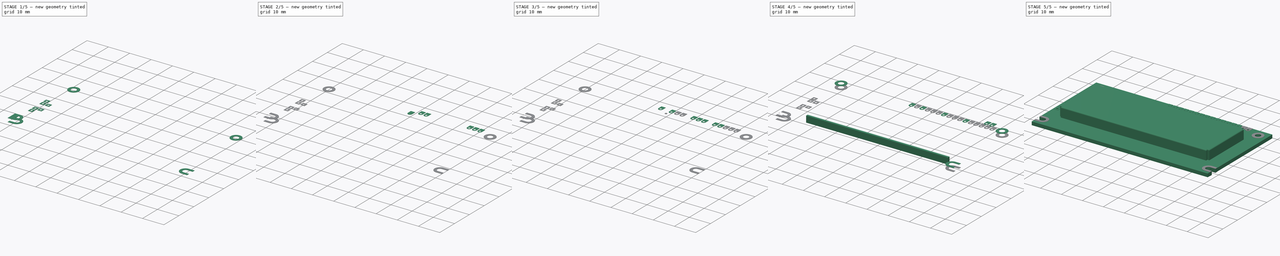
[diagram: build sequence overview — one tinted view per stage of 5, left to right]
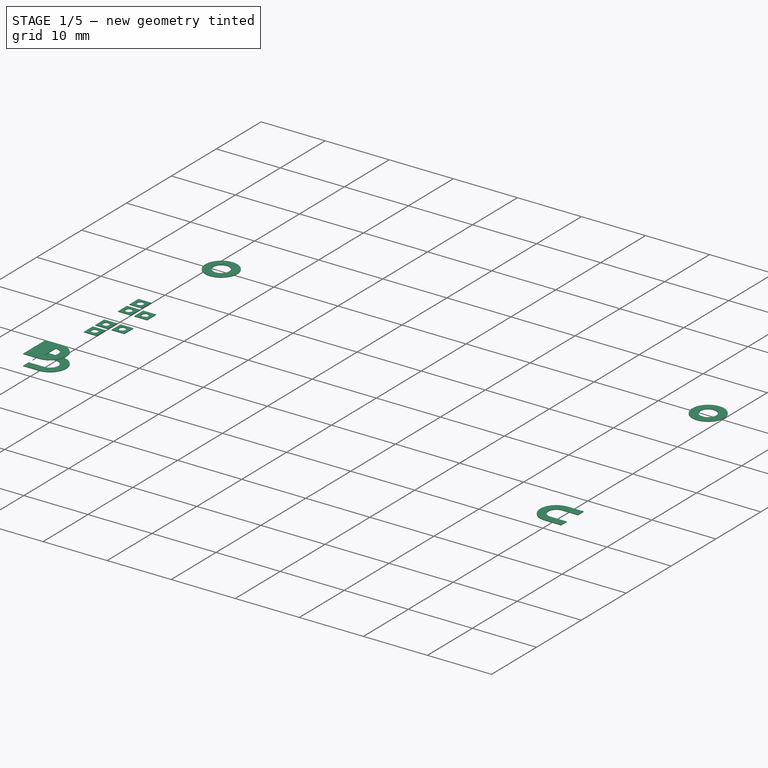
[diagram: stage 1 of 5 — iso view after this stage's code; geometry added in this stage tinted green]
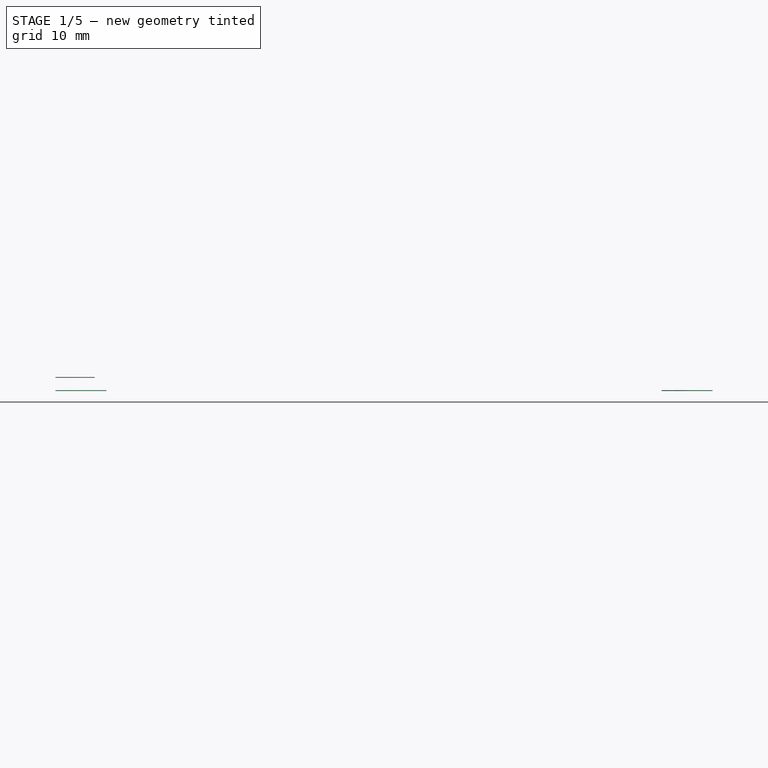
[diagram: stage 1 of 5 — front view after this stage's code; geometry added in this stage tinted green]
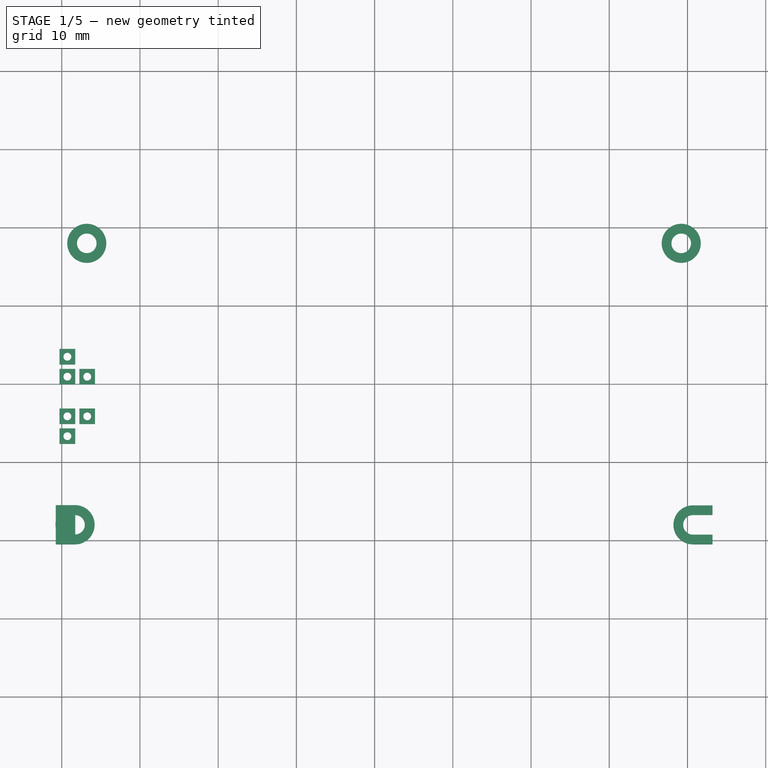
[diagram: stage 1 of 5 — top view after this stage's code; geometry added in this stage tinted green]
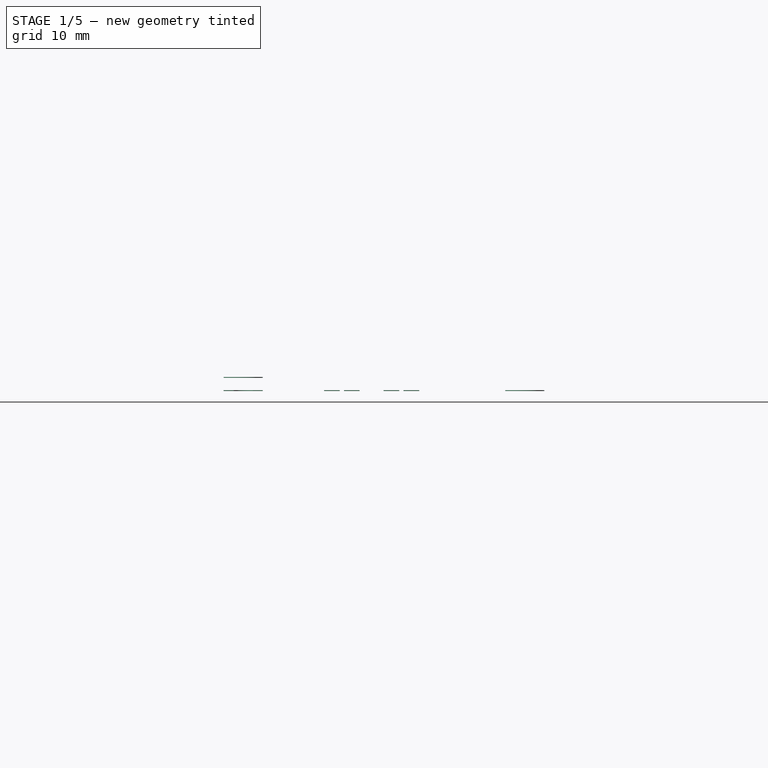
[diagram: stage 1 of 5 — right view after this stage's code; geometry added in this stage tinted green]
FCSTD DOCUMENT  (FreeCAD 0.17R13171 (Git))
Label: RC1602A
License: All rights reserved
LicenseURL: http://en.wikipedia.org/wiki/All_rights_reserved
objects: Part::Cylinder×70, Part::Cut×61, Part::Box×43, Part::MultiFuse×37, Part::Fillet×9, Sketcher::SketchObject×1, PartDesign::Pad×1, PartDesign::Body×1, Part::Feature×1
note: 225 computed .brp shape members not serialized (recipe doc carries the construction recipe); baked Part::Feature solids carry a one-line shape summary decoded from their .brp

FEATURE [Part::Box] Box021  label="Kub018"
  AttacherType = Attacher::AttachEngine3D
  Height = 0.1
  Length = 2
  Placement = pos=(-1,-1,1.6) rot=(0,0,1;0rad)
  Width = 2
FEATURE [Part::Cylinder] Cylinder042
  Angle = 360
  AttacherType = Attacher::AttachEngine3D
  Height = 0.1
  Placement = pos=(0,0,1.6) rot=(0,0,1;0rad)
  Radius = 0.5
FEATURE [Part::Box] Box022  label="Kub019"
  AttacherType = Attacher::AttachEngine3D
  Height = 0.1
  Length = 2
  Placement = pos=(-1,-1,1.6) rot=(0,0,1;0rad)
  Width = 2
FEATURE [Part::Cylinder] Cylinder043
  Angle = 360
  AttacherType = Attacher::AttachEngine3D
  Height = 0.1
  Placement = pos=(0,0,1.6) rot=(0,0,1;0rad)
  Radius = 0.5
FEATURE [Part::Box] Box023  label="Kub020"
  AttacherType = Attacher::AttachEngine3D
  Height = 0.1
  Length = 2
  Placement = pos=(-1,-1,1.6) rot=(0,0,1;0rad)
  Width = 2
FEATURE [Part::Cylinder] Cylinder044
  Angle = 360
  AttacherType = Attacher::AttachEngine3D
  Height = 0.1
  Placement = pos=(0,0,1.6) rot=(0,0,1;0rad)
  Radius = 0.5
FEATURE [Part::Box] Box024  label="Kub021"
  AttacherType = Attacher::AttachEngine3D
  Height = 0.1
  Length = 2
  Placement = pos=(-1,-1,1.6) rot=(0,0,1;0rad)
  Width = 2
FEATURE [Part::Cylinder] Cylinder045
  Angle = 360
  AttacherType = Attacher::AttachEngine3D
  Height = 0.1
  Placement = pos=(0,0,1.6) rot=(0,0,1;0rad)
  Radius = 0.5
FEATURE [Part::Box] Box025  label="Kub022"
  AttacherType = Attacher::AttachEngine3D
  Height = 0.1
  Length = 2
  Placement = pos=(-1,-1,1.6) rot=(0,0,1;0rad)
  Width = 2
FEATURE [Part::Cylinder] Cylinder046
  Angle = 360
  AttacherType = Attacher::AttachEngine3D
  Height = 0.1
  Placement = pos=(0,0,1.6) rot=(0,0,1;0rad)
  Radius = 0.5
FEATURE [Part::Box] Box026  label="Kub023"
  AttacherType = Attacher::AttachEngine3D
  Height = 0.1
  Length = 2
  Placement = pos=(-1,-1,1.6) rot=(0,0,1;0rad)
  Width = 2
FEATURE [Part::Cylinder] Cylinder047
  Angle = 360
  AttacherType = Attacher::AttachEngine3D
  Height = 0.1
  Placement = pos=(0,0,1.6) rot=(0,0,1;0rad)
  Radius = 0.5
FEATURE [Part::Cylinder] Cylinder052
  Angle = 360
  AttacherType = Attacher::AttachEngine3D
  Height = 0.1
  Placement = pos=(0,0,4.6) rot=(0,0,1;0rad)
  Radius = 2.5
FEATURE [Part::Cylinder] Cylinder053
  Angle = 360
  AttacherType = Attacher::AttachEngine3D
  Height = 0.1
  Placement = pos=(0,0,4.6) rot=(0,0,1;0rad)
  Radius = 1.25
FEATURE [Part::Cut] Cut041  label="Corner Copper 003"
  Base = -> Cylinder052
  Placement = pos=(-38.3,-38,0) rot=(0,0,1;0rad)
  Tool = -> Cylinder053
FEATURE [Part::Box] Box029  label="Kub024"
  AttacherType = Attacher::AttachEngine3D
  Height = 0.1
  Length = 2.5
  Placement = pos=(-40.77,-40.5,4.6) rot=(0,0,1;0rad)
  Width = 5
FEATURE [Part::Cylinder] Cylinder068
  Angle = 360
  AttacherType = Attacher::AttachEngine3D
  Height = 0.1
  Placement = pos=(0,0,4.6) rot=(0,0,1;0rad)
  Radius = 1.25
FEATURE [Part::Cylinder] Cylinder069
  Angle = 360
  AttacherType = Attacher::AttachEngine3D
  Height = 0.1
  Placement = pos=(0,0,4.6) rot=(0,0,1;0rad)
  Radius = 2.5
FEATURE [Part::Box] Box039  label="Kub034"
  AttacherType = Attacher::AttachEngine3D
  Height = 0.1
  Length = 2.5
  Placement = pos=(40.7,-36.75,4.6) rot=(0,0,1;0rad)
  Width = 1.25
FEATURE [Part::Box] Box040  label="Kub035"
  AttacherType = Attacher::AttachEngine3D
  Height = 0.1
  Length = 2.5
  Placement = pos=(-40.77,-36.75,4.6) rot=(0,0,1;0rad)
  Width = 1.25
FEATURE [Part::Cylinder] Cylinder070
  Angle = 360
  AttacherType = Attacher::AttachEngine3D
  Height = 0.1
  Placement = pos=(0,0,4.6) rot=(0,0,1;0rad)
  Radius = 2.5
FEATURE [Part::Cylinder] Cylinder071
  Angle = 360
  AttacherType = Attacher::AttachEngine3D
  Height = 0.1
  Placement = pos=(0,0,4.6) rot=(0,0,1;0rad)
  Radius = 1.25
FEATURE [Part::Cylinder] Cylinder072
  Angle = 360
  AttacherType = Attacher::AttachEngine3D
  Height = 0.1
  Placement = pos=(0,0,4.6) rot=(0,0,1;0rad)
  Radius = 1.25
FEATURE [Part::Cut] Cut054  label="Corner Copper 006"
  Base = -> Cylinder070
  Placement = pos=(39.2,-2,-1.7) rot=(0,0,1;0rad)
  Tool = -> Cylinder072
FEATURE [Part::Cylinder] Cylinder073
  Angle = 360
  AttacherType = Attacher::AttachEngine3D
  Height = 0.1
  Placement = pos=(0,0,4.6) rot=(0,0,1;0rad)
  Radius = 1.25
FEATURE [Part::Cut] Cut053  label="Corner Copper 005"
  Base = -> Cylinder069
  Placement = pos=(-36.8,-2,-1.7) rot=(0,0,1;0rad)
  Tool = -> Cylinder073
FEATURE [Part::Cylinder] Cylinder074
  Angle = 360
  AttacherType = Attacher::AttachEngine3D
  Height = 0.1
  Placement = pos=(0,0,4.6) rot=(0,0,1;0rad)
  Radius = 2.5
FEATURE [Part::Cut] Cut057  label="Corner Copper 007"
  Base = -> Cylinder074
  Placement = pos=(-38.3,-38,0) rot=(0,0,1;0rad)
  Tool = -> Cylinder068
FEATURE [Part::Box] Box041  label="Kub036"
  AttacherType = Attacher::AttachEngine3D
  Height = 0.1
  Length = 2.5
  Placement = pos=(40.7,-40.5,4.6) rot=(0,0,1;0rad)
  Width = 5
FEATURE [Part::Box] Box042  label="Kub037"
  AttacherType = Attacher::AttachEngine3D
  Height = 0.1
  Length = 2.5
  Placement = pos=(-40.77,-40.5,4.6) rot=(0,0,1;0rad)
  Width = 5
FEATURE [Part::Cut] Cut056
  Base = -> Cut057
  Tool = -> Box042
FEATURE [Part::Cylinder] Cylinder075
  Angle = 360
  AttacherType = Attacher::AttachEngine3D
  Height = 0.1
  Placement = pos=(0,0,4.6) rot=(0,0,1;0rad)
  Radius = 2.5
FEATURE [Part::Cut] Cut058  label="Corner Copper 008"
  Base = -> Cylinder075
  Placement = pos=(40.7,-38,0) rot=(0,0,1;0rad)
  Tool = -> Cylinder071
FEATURE [Part::Cut] Cut055
  Base = -> Cut058
  Tool = -> Box041
FEATURE [Part::Box] Box043  label="Kub038"
  AttacherType = Attacher::AttachEngine3D
  Height = 0.1
  Length = 2.5
  Placement = pos=(40.7,-40.5,4.6) rot=(0,0,1;0rad)
  Width = 1.25
FEATURE [Part::MultiFuse] Fusion034
  Placement = pos=(0,0,-1.7) rot=(0,0,1;0rad)
  Shapes = -> [Cut055,Box039,Box043]
FEATURE [Part::Box] Box044  label="Kub039"
  AttacherType = Attacher::AttachEngine3D
  Height = 0.1
  Length = 2.5
  Placement = pos=(-40.77,-40.5,4.6) rot=(0,0,1;0rad)
  Width = 1.25
FEATURE [Part::MultiFuse] Fusion035
  Placement = pos=(0,0,-1.7) rot=(0,0,1;0rad)
  Shapes = -> [Cut056,Box044,Box040]
FEATURE [Part::Cut] Cut059  label="SquarePin 007"
  Base = -> Box021
  Placement = pos=(-36.74,-19.05,1.3) rot=(0,0,1;0rad)
  Tool = -> Cylinder042
FEATURE [Part::Cut] Cut060  label="SquarePin 008"
  Base = -> Box026
  Placement = pos=(-36.74,-24.12,1.3) rot=(0,0,1;0rad)
  Tool = -> Cylinder047
FEATURE [Part::Cut] Cut061  label="SquarePin 009"
  Base = -> Box023
  Placement = pos=(-39.28,-16.5,1.3) rot=(0,0,1;0rad)
  Tool = -> Cylinder044
FEATURE [Part::Cut] Cut062  label="SquarePin 010"
  Base = -> Box024
  Placement = pos=(-39.28,-24.12,1.3) rot=(0,0,1;0rad)
  Tool = -> Cylinder045
FEATURE [Part::Cut] Cut063  label="SquarePin 011"
  Base = -> Box025
  Placement = pos=(-39.28,-26.66,1.3) rot=(0,0,1;0rad)
  Tool = -> Cylinder046
FEATURE [Part::Cut] Cut064  label="SquarePin 012"
  Base = -> Box022
  Placement = pos=(-39.28,-19.05,1.3) rot=(0,0,1;0rad)
  Tool = -> Cylinder043
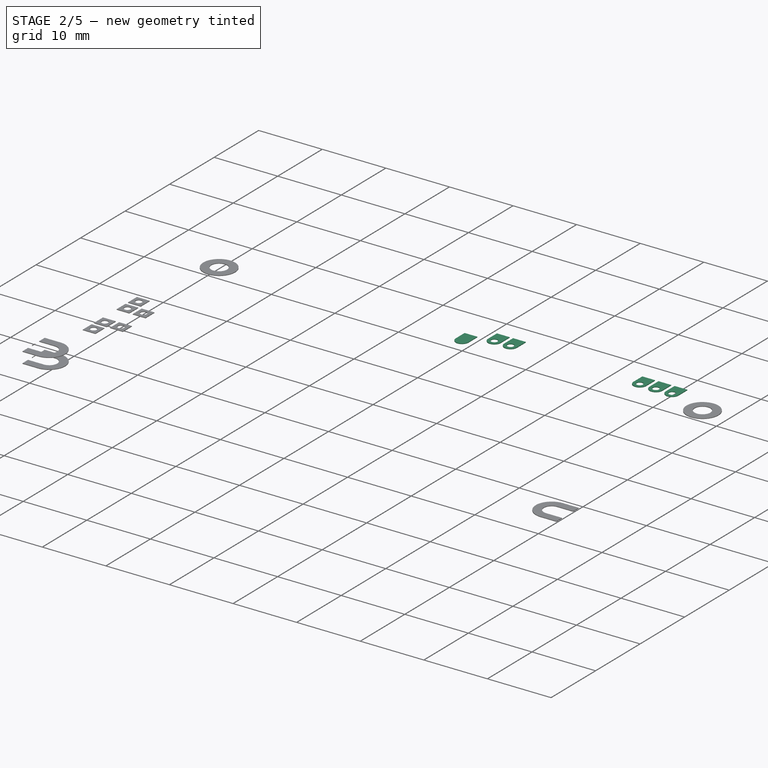
[diagram: stage 2 of 5 — iso view after this stage's code; geometry added in this stage tinted green]
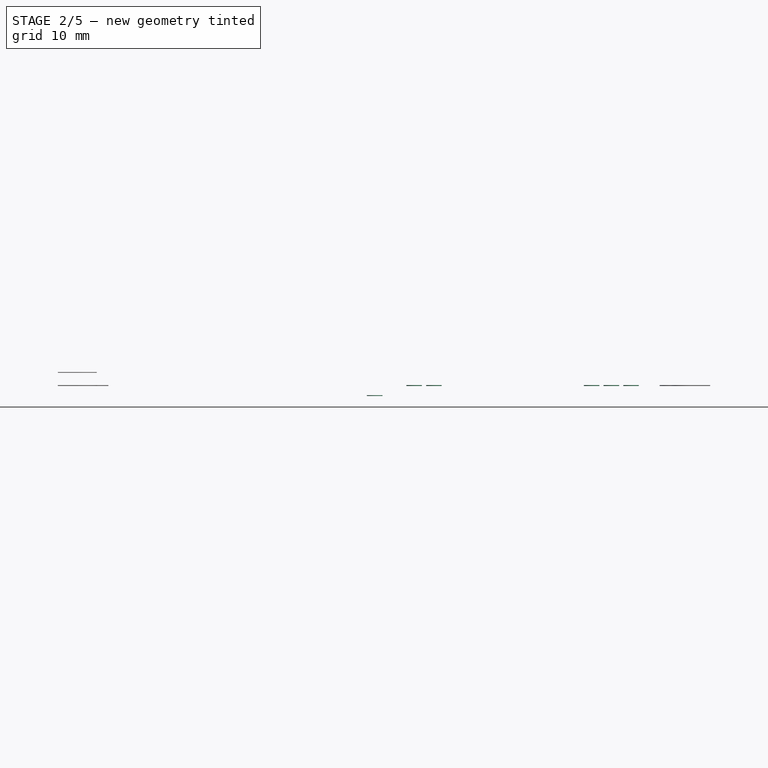
[diagram: stage 2 of 5 — front view after this stage's code; geometry added in this stage tinted green]
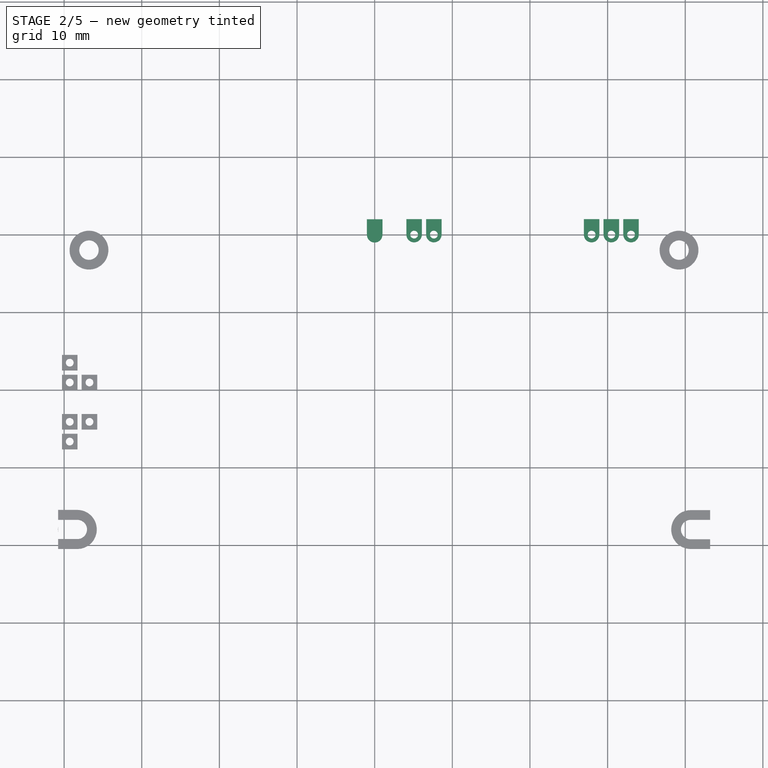
[diagram: stage 2 of 5 — top view after this stage's code; geometry added in this stage tinted green]
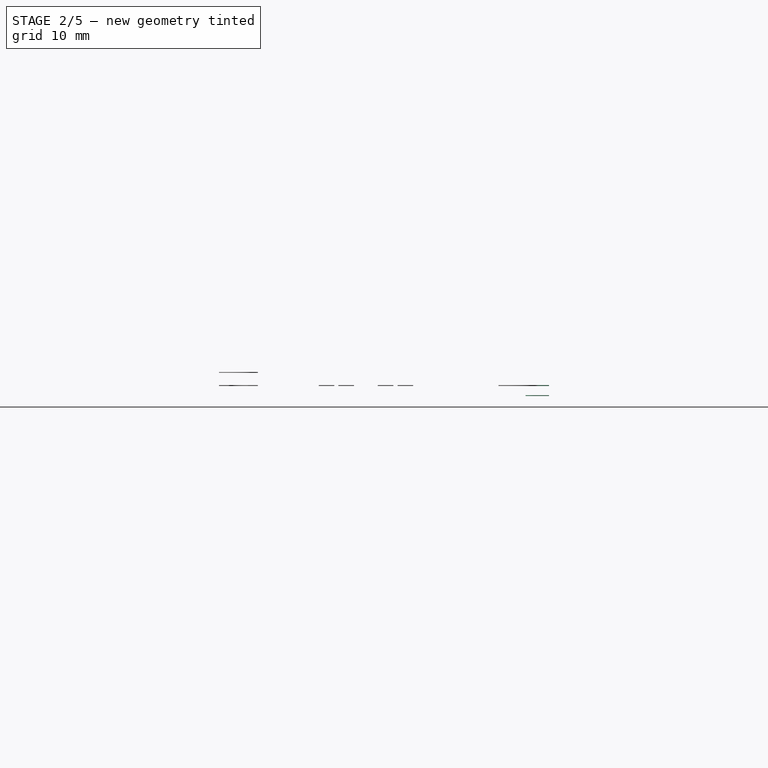
[diagram: stage 2 of 5 — right view after this stage's code; geometry added in this stage tinted green]
FEATURE [Part::Cylinder] Cylinder006
  Angle = 360
  AttacherType = Attacher::AttachEngine3D
  Height = 0.1
  Placement = pos=(0,0,1.6) rot=(0,0,1;0rad)
  Radius = 1
FEATURE [Part::Cylinder] Cylinder007
  Angle = 360
  AttacherType = Attacher::AttachEngine3D
  Height = 0.1
  Placement = pos=(0,0,1.6) rot=(0,0,1;0rad)
  Radius = 0.5
FEATURE [Part::Cut] Cut009
  Base = -> Cylinder006
  Tool = -> Cylinder007
FEATURE [Part::Box] Box009  label="Kub006"
  AttacherType = Attacher::AttachEngine3D
  Height = 0.1
  Length = 2
  Placement = pos=(-1,0,1.6) rot=(0,0,1;0rad)
  Width = 2
FEATURE [Part::Cylinder] Cylinder008
  Angle = 360
  AttacherType = Attacher::AttachEngine3D
  Height = 0.1
  Placement = pos=(0,0,1.6) rot=(0,0,1;0rad)
  Radius = 0.5
FEATURE [Part::Cut] Cut010
  Base = -> Box009
  Tool = -> Cylinder008
FEATURE [Part::Cylinder] Cylinder009
  Angle = 360
  AttacherType = Attacher::AttachEngine3D
  Height = 0.1
  Placement = pos=(0,0,1.6) rot=(0,0,1;0rad)
  Radius = 1
FEATURE [Part::Cylinder] Cylinder010
  Angle = 360
  AttacherType = Attacher::AttachEngine3D
  Height = 0.1
  Placement = pos=(0,0,1.6) rot=(0,0,1;0rad)
  Radius = 0.5
FEATURE [Part::Cut] Cut011
  Base = -> Cylinder009
  Tool = -> Cylinder010
FEATURE [Part::Box] Box010  label="Kub007"
  AttacherType = Attacher::AttachEngine3D
  Height = 0.1
  Length = 2
  Placement = pos=(-1,0,1.6) rot=(0,0,1;0rad)
  Width = 2
FEATURE [Part::Cylinder] Cylinder011
  Angle = 360
  AttacherType = Attacher::AttachEngine3D
  Height = 0.1
  Placement = pos=(0,0,1.6) rot=(0,0,1;0rad)
  Radius = 0.5
FEATURE [Part::Cut] Cut012
  Base = -> Box010
  Tool = -> Cylinder011
FEATURE [Part::Cylinder] Cylinder015
  Angle = 360
  AttacherType = Attacher::AttachEngine3D
  Height = 0.1
  Placement = pos=(0,0,1.6) rot=(0,0,1;0rad)
  Radius = 1
FEATURE [Part::Cylinder] Cylinder016
  Angle = 360
  AttacherType = Attacher::AttachEngine3D
  Height = 0.1
  Placement = pos=(0,0,1.6) rot=(0,0,1;0rad)
  Radius = 0.5
FEATURE [Part::Box] Box012  label="Kub009"
  AttacherType = Attacher::AttachEngine3D
  Height = 0.1
  Length = 2
  Placement = pos=(-1,0,1.6) rot=(0,0,1;0rad)
  Width = 2
FEATURE [Part::Cylinder] Cylinder017
  Angle = 360
  AttacherType = Attacher::AttachEngine3D
  Height = 0.1
  Placement = pos=(0,0,1.6) rot=(0,0,1;0rad)
  Radius = 0.5
FEATURE [Part::Cut] Cut016
  Base = -> Box012
  Tool = -> Cylinder017
FEATURE [Part::Cylinder] Cylinder033
  Angle = 360
  AttacherType = Attacher::AttachEngine3D
  Height = 0.1
  Placement = pos=(0,0,1.6) rot=(0,0,1;0rad)
  Radius = 1
FEATURE [Part::Cylinder] Cylinder034
  Angle = 360
  AttacherType = Attacher::AttachEngine3D
  Height = 0.1
  Placement = pos=(0,0,1.6) rot=(0,0,1;0rad)
  Radius = 0.5
FEATURE [Part::Cut] Cut027
  Base = -> Cylinder033
  Tool = -> Cylinder034
FEATURE [Part::Box] Box018  label="Kub015"
  AttacherType = Attacher::AttachEngine3D
  Height = 0.1
  Length = 2
  Placement = pos=(-1,0,1.6) rot=(0,0,1;0rad)
  Width = 2
FEATURE [Part::Cylinder] Cylinder035
  Angle = 360
  AttacherType = Attacher::AttachEngine3D
  Height = 0.1
  Placement = pos=(0,0,1.6) rot=(0,0,1;0rad)
  Radius = 0.5
FEATURE [Part::Cut] Cut028
  Base = -> Box018
  Tool = -> Cylinder035
FEATURE [Part::Box] Box033  label="Kub028"
  AttacherType = Attacher::AttachEngine3D
  Height = 0.1
  Length = 2.5
  Placement = pos=(-40.77,-40.5,4.6) rot=(0,0,1;0rad)
  Width = 1.25
FEATURE [Part::Box] Box034  label="Kub029"
  AttacherType = Attacher::AttachEngine3D
  Height = 0.1
  Length = 2.5
  Placement = pos=(-40.77,-36.75,4.6) rot=(0,0,1;0rad)
  Width = 1.25
FEATURE [Part::Cylinder] Cylinder062
  Angle = 360
  AttacherType = Attacher::AttachEngine3D
  Height = 0.1
  Placement = pos=(0,0,1.6) rot=(0,0,1;0rad)
  Radius = 1
FEATURE [Part::Cylinder] Cylinder063
  Angle = 360
  AttacherType = Attacher::AttachEngine3D
  Height = 0.1
  Placement = pos=(0,0,1.6) rot=(0,0,1;0rad)
  Radius = 0.5
FEATURE [Part::Cut] Cut049
  Base = -> Cylinder062
  Tool = -> Cylinder063
FEATURE [Part::Box] Box037  label="Kub032"
  AttacherType = Attacher::AttachEngine3D
  Height = 0.1
  Length = 2
  Placement = pos=(-1,0,1.6) rot=(0,0,1;0rad)
  Width = 2
FEATURE [Part::Cylinder] Cylinder064
  Angle = 360
  AttacherType = Attacher::AttachEngine3D
  Height = 0.1
  Placement = pos=(0,0,1.6) rot=(0,0,1;0rad)
  Radius = 0.5
FEATURE [Part::Cut] Cut050
  Base = -> Box037
  Tool = -> Cylinder064
FEATURE [Part::Cylinder] Cylinder065
  Angle = 360
  AttacherType = Attacher::AttachEngine3D
  Height = 0.1
  Placement = pos=(0,0,1.6) rot=(0,0,1;0rad)
  Radius = 1
FEATURE [Part::Cylinder] Cylinder066
  Angle = 360
  AttacherType = Attacher::AttachEngine3D
  Height = 0.1
  Placement = pos=(0,0,1.6) rot=(0,0,1;0rad)
  Radius = 0.5
FEATURE [Part::Cut] Cut051
  Base = -> Cylinder065
  Tool = -> Cylinder066
FEATURE [Part::Box] Box038  label="Kub033"
  AttacherType = Attacher::AttachEngine3D
  Height = 0.1
  Length = 2
  Placement = pos=(-1,0,1.6) rot=(0,0,1;0rad)
  Width = 2
FEATURE [Part::Cylinder] Cylinder067
  Angle = 360
  AttacherType = Attacher::AttachEngine3D
  Height = 0.1
  Placement = pos=(0,0,1.6) rot=(0,0,1;0rad)
  Radius = 0.5
FEATURE [Part::Cut] Cut052
  Base = -> Box038
  Tool = -> Cylinder067
FEATURE [Part::MultiFuse] Fusion029  label="Pin 028"
  Placement = pos=(5.08,0,1.3) rot=(0,0,1;0rad)
  Shapes = -> [Cut009,Cut010]
FEATURE [Part::MultiFuse] Fusion030  label="Pin 029"
  Placement = pos=(27.94,0,1.3) rot=(0,0,1;0rad)
  Shapes = -> [Cut027,Cut028]
FEATURE [Part::MultiFuse] Fusion031  label="Pin 030"
  Placement = pos=(7.62,0,1.3) rot=(0,0,1;0rad)
  Shapes = -> [Cut011,Cut012]
FEATURE [Part::MultiFuse] Fusion032  label="Pin 031"
  Placement = pos=(30.48,0,1.3) rot=(0,0,1;0rad)
  Shapes = -> [Cut049,Cut050]
FEATURE [Part::MultiFuse] Fusion033  label="Pin 032"
  Placement = pos=(33.02,0,1.3) rot=(0,0,1;0rad)
  Shapes = -> [Cut051,Cut052]
FEATURE [Part::Cut] Cut044
  Base = -> Cut041
  Tool = -> Box029
FEATURE [Part::MultiFuse] Fusion015
  Shapes = -> [Cut044,Box033,Box034]
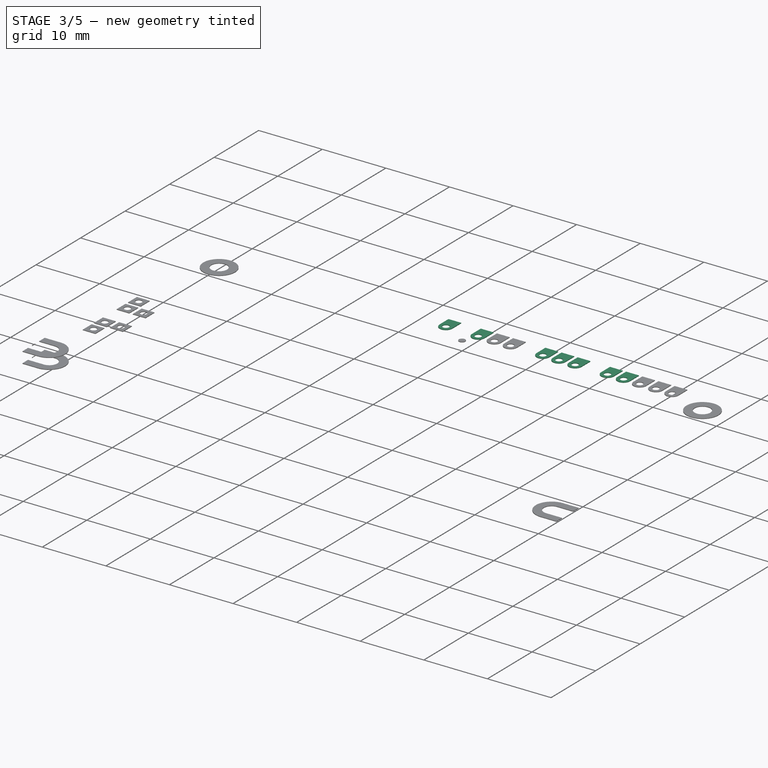
[diagram: stage 3 of 5 — iso view after this stage's code; geometry added in this stage tinted green]
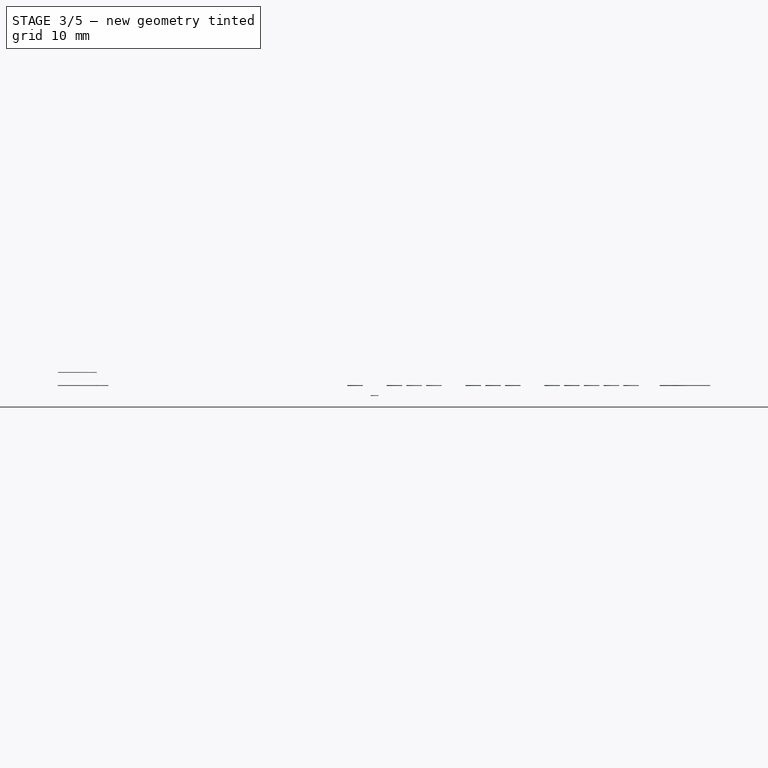
[diagram: stage 3 of 5 — front view after this stage's code; geometry added in this stage tinted green]
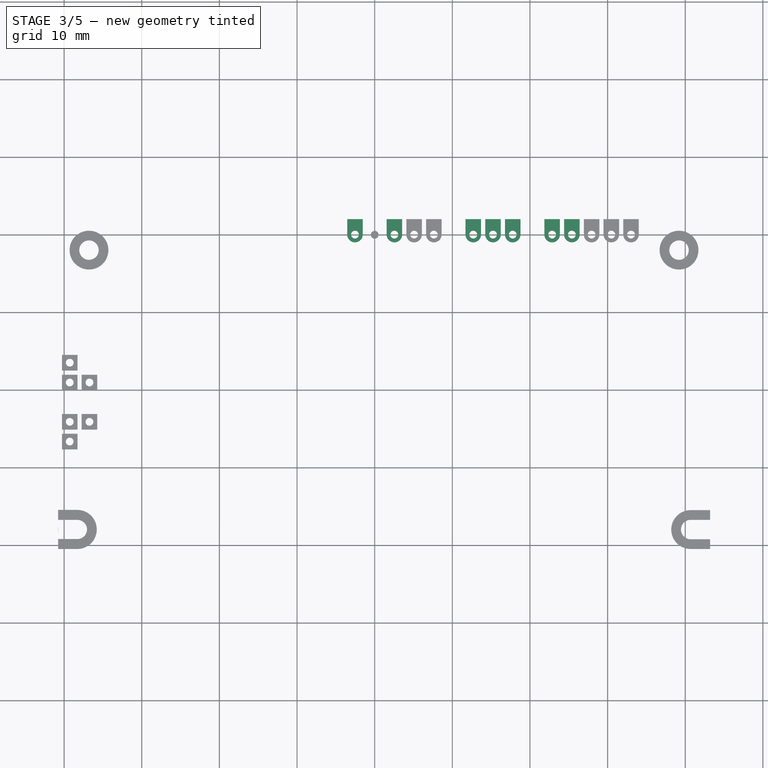
[diagram: stage 3 of 5 — top view after this stage's code; geometry added in this stage tinted green]
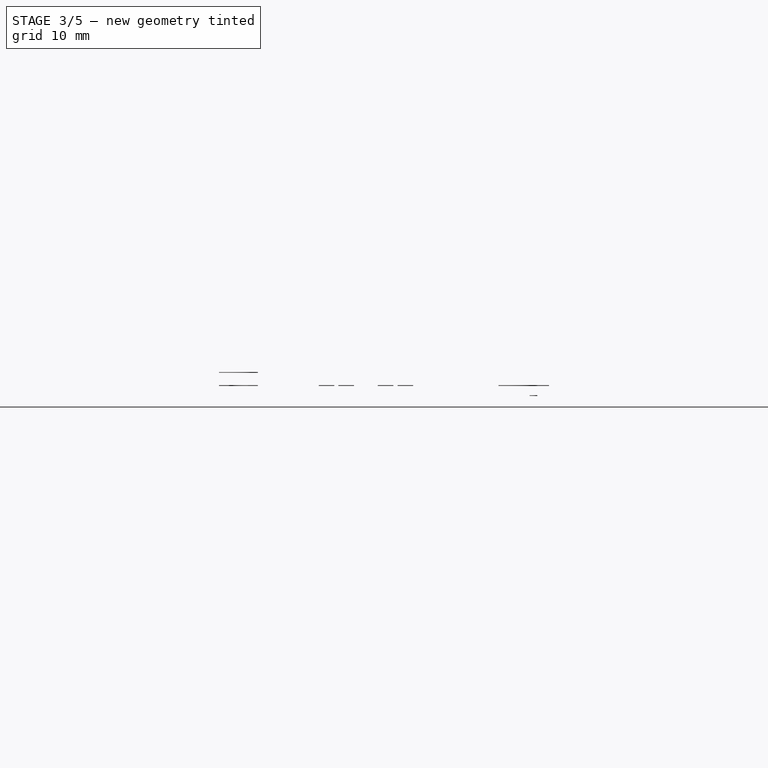
[diagram: stage 3 of 5 — right view after this stage's code; geometry added in this stage tinted green]
FEATURE [Part::Cylinder] Cylinder003
  Angle = 360
  AttacherType = Attacher::AttachEngine3D
  Height = 0.1
  Placement = pos=(0,0,1.6) rot=(0,0,1;0rad)
  Radius = 1
FEATURE [Part::Cylinder] Cylinder004
  Angle = 360
  AttacherType = Attacher::AttachEngine3D
  Height = 0.1
  Placement = pos=(0,0,1.6) rot=(0,0,1;0rad)
  Radius = 0.5
FEATURE [Part::Cut] Cut007
  Base = -> Cylinder003
  Tool = -> Cylinder004
FEATURE [Part::Box] Box008  label="Kub005"
  AttacherType = Attacher::AttachEngine3D
  Height = 0.1
  Length = 2
  Placement = pos=(-1,0,1.6) rot=(0,0,1;0rad)
  Width = 2
FEATURE [Part::Cylinder] Cylinder005
  Angle = 360
  AttacherType = Attacher::AttachEngine3D
  Height = 0.1
  Placement = pos=(0,0,1.6) rot=(0,0,1;0rad)
  Radius = 0.5
FEATURE [Part::Cut] Cut008
  Base = -> Box008
  Tool = -> Cylinder005
FEATURE [Part::Cut] Cut015
  Base = -> Cylinder015
  Tool = -> Cylinder016
FEATURE [Part::Cylinder] Cylinder018
  Angle = 360
  AttacherType = Attacher::AttachEngine3D
  Height = 0.1
  Placement = pos=(0,0,1.6) rot=(0,0,1;0rad)
  Radius = 1
FEATURE [Part::Cylinder] Cylinder019
  Angle = 360
  AttacherType = Attacher::AttachEngine3D
  Height = 0.1
  Placement = pos=(0,0,1.6) rot=(0,0,1;0rad)
  Radius = 0.5
FEATURE [Part::Cut] Cut017
  Base = -> Cylinder018
  Tool = -> Cylinder019
FEATURE [Part::Box] Box013  label="Kub010"
  AttacherType = Attacher::AttachEngine3D
  Height = 0.1
  Length = 2
  Placement = pos=(-1,0,1.6) rot=(0,0,1;0rad)
  Width = 2
FEATURE [Part::Cylinder] Cylinder020
  Angle = 360
  AttacherType = Attacher::AttachEngine3D
  Height = 0.1
  Placement = pos=(0,0,1.6) rot=(0,0,1;0rad)
  Radius = 0.5
FEATURE [Part::Cut] Cut018
  Base = -> Box013
  Tool = -> Cylinder020
FEATURE [Part::Cylinder] Cylinder021
  Angle = 360
  AttacherType = Attacher::AttachEngine3D
  Height = 0.1
  Placement = pos=(0,0,1.6) rot=(0,0,1;0rad)
  Radius = 1
FEATURE [Part::Cylinder] Cylinder022
  Angle = 360
  AttacherType = Attacher::AttachEngine3D
  Height = 0.1
  Placement = pos=(0,0,1.6) rot=(0,0,1;0rad)
  Radius = 0.5
FEATURE [Part::Cut] Cut019
  Base = -> Cylinder021
  Tool = -> Cylinder022
FEATURE [Part::Box] Box014  label="Kub011"
  AttacherType = Attacher::AttachEngine3D
  Height = 0.1
  Length = 2
  Placement = pos=(-1,0,1.6) rot=(0,0,1;0rad)
  Width = 2
FEATURE [Part::Cylinder] Cylinder023
  Angle = 360
  AttacherType = Attacher::AttachEngine3D
  Height = 0.1
  Placement = pos=(0,0,1.6) rot=(0,0,1;0rad)
  Radius = 0.5
FEATURE [Part::Cut] Cut020
  Base = -> Box014
  Tool = -> Cylinder023
FEATURE [Part::Cylinder] Cylinder026
  Angle = 360
  AttacherType = Attacher::AttachEngine3D
  Height = 0.1
  Placement = pos=(0,0,1.6) rot=(0,0,1;0rad)
  Radius = 0.5
FEATURE [Part::Cylinder] Cylinder027
  Angle = 360
  AttacherType = Attacher::AttachEngine3D
  Height = 0.1
  Placement = pos=(0,0,1.6) rot=(0,0,1;0rad)
  Radius = 1
FEATURE [Part::Cylinder] Cylinder028
  Angle = 360
  AttacherType = Attacher::AttachEngine3D
  Height = 0.1
  Placement = pos=(0,0,1.6) rot=(0,0,1;0rad)
  Radius = 0.5
FEATURE [Part::Cut] Cut023
  Base = -> Cylinder027
  Tool = -> Cylinder028
FEATURE [Part::Box] Box016  label="Kub013"
  AttacherType = Attacher::AttachEngine3D
  Height = 0.1
  Length = 2
  Placement = pos=(-1,0,1.6) rot=(0,0,1;0rad)
  Width = 2
FEATURE [Part::Cylinder] Cylinder029
  Angle = 360
  AttacherType = Attacher::AttachEngine3D
  Height = 0.1
  Placement = pos=(0,0,1.6) rot=(0,0,1;0rad)
  Radius = 0.5
FEATURE [Part::Cut] Cut024
  Base = -> Box016
  Tool = -> Cylinder029
FEATURE [Part::Cylinder] Cylinder030
  Angle = 360
  AttacherType = Attacher::AttachEngine3D
  Height = 0.1
  Placement = pos=(0,0,1.6) rot=(0,0,1;0rad)
  Radius = 1
FEATURE [Part::Cylinder] Cylinder031
  Angle = 360
  AttacherType = Attacher::AttachEngine3D
  Height = 0.1
  Placement = pos=(0,0,1.6) rot=(0,0,1;0rad)
  Radius = 0.5
FEATURE [Part::Cut] Cut025
  Base = -> Cylinder030
  Tool = -> Cylinder031
FEATURE [Part::Box] Box017  label="Kub014"
  AttacherType = Attacher::AttachEngine3D
  Height = 0.1
  Length = 2
  Placement = pos=(-1,0,1.6) rot=(0,0,1;0rad)
  Width = 2
FEATURE [Part::Cylinder] Cylinder032
  Angle = 360
  AttacherType = Attacher::AttachEngine3D
  Height = 0.1
  Placement = pos=(0,0,1.6) rot=(0,0,1;0rad)
  Radius = 0.5
FEATURE [Part::Cut] Cut026
  Base = -> Box017
  Tool = -> Cylinder032
FEATURE [Part::Cylinder] Cylinder036
  Angle = 360
  AttacherType = Attacher::AttachEngine3D
  Height = 0.1
  Placement = pos=(0,0,1.6) rot=(0,0,1;0rad)
  Radius = 1
FEATURE [Part::Cylinder] Cylinder037
  Angle = 360
  AttacherType = Attacher::AttachEngine3D
  Height = 0.1
  Placement = pos=(0,0,1.6) rot=(0,0,1;0rad)
  Radius = 0.5
FEATURE [Part::Cut] Cut029
  Base = -> Cylinder036
  Tool = -> Cylinder037
FEATURE [Part::Box] Box019  label="Kub016"
  AttacherType = Attacher::AttachEngine3D
  Height = 0.1
  Length = 2
  Placement = pos=(-1,0,1.6) rot=(0,0,1;0rad)
  Width = 2
FEATURE [Part::Cylinder] Cylinder038
  Angle = 360
  AttacherType = Attacher::AttachEngine3D
  Height = 0.1
  Placement = pos=(0,0,1.6) rot=(0,0,1;0rad)
  Radius = 0.5
FEATURE [Part::Cut] Cut030
  Base = -> Box019
  Tool = -> Cylinder038
FEATURE [Part::MultiFuse] Fusion022  label="Pin 021"
  Placement = pos=(2.54,0,1.3) rot=(0,0,1;0rad)
  Shapes = -> [Cut007,Cut008]
FEATURE [Part::MultiFuse] Fusion023  label="Pin 022"
  Placement = pos=(15.24,0,1.3) rot=(0,0,1;0rad)
  Shapes = -> [Cut017,Cut018]
FEATURE [Part::MultiFuse] Fusion024  label="Pin 023"
  Placement = pos=(25.4,0,1.3) rot=(0,0,1;0rad)
  Shapes = -> [Cut025,Cut026]
FEATURE [Part::MultiFuse] Fusion025  label="Pin 024"
  Placement = pos=(-2.54,0,1.3) rot=(0,0,1;0rad)
  Shapes = -> [Cut029,Cut030]
FEATURE [Part::MultiFuse] Fusion026  label="Pin 025"
  Placement = pos=(22.86,0,1.3) rot=(0,0,1;0rad)
  Shapes = -> [Cut023,Cut024]
FEATURE [Part::MultiFuse] Fusion027  label="Pin 026"
  Placement = pos=(17.78,0,1.3) rot=(0,0,1;0rad)
  Shapes = -> [Cut019,Cut020]
FEATURE [Part::MultiFuse] Fusion028  label="Pin 027"
  Placement = pos=(12.7,0,1.3) rot=(0,0,1;0rad)
  Shapes = -> [Cut015,Cut016]
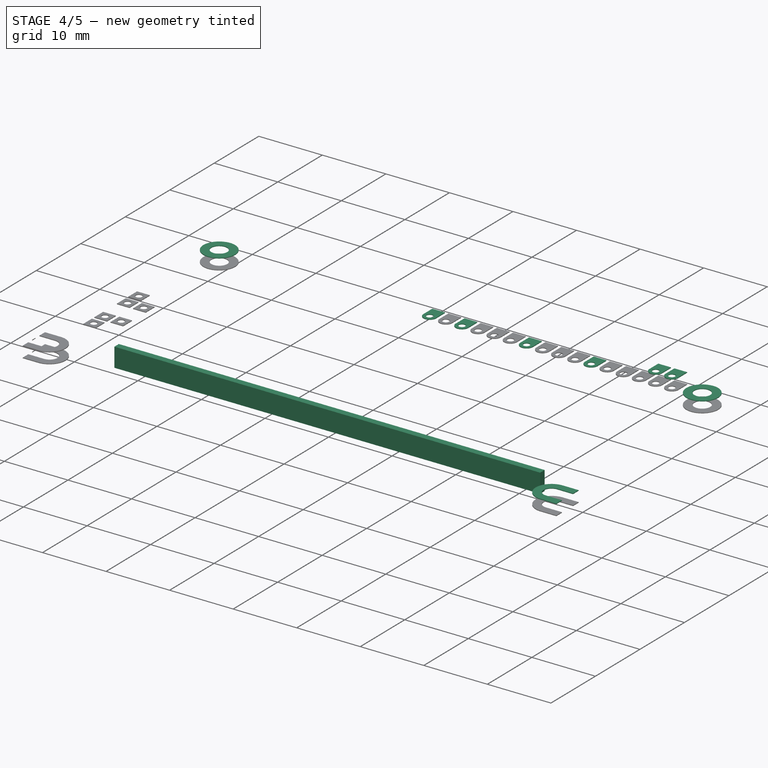
[diagram: stage 4 of 5 — iso view after this stage's code; geometry added in this stage tinted green]
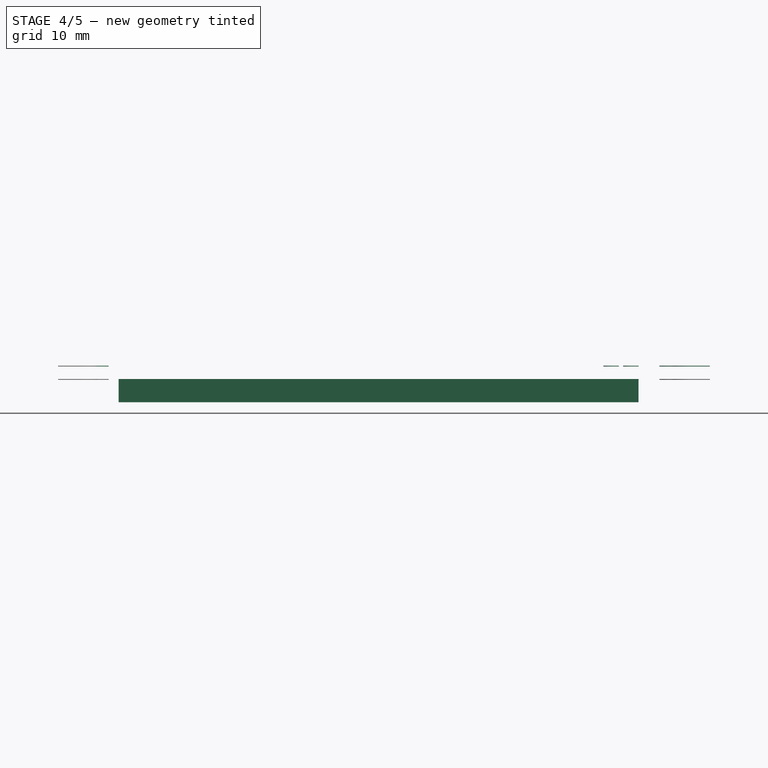
[diagram: stage 4 of 5 — front view after this stage's code; geometry added in this stage tinted green]
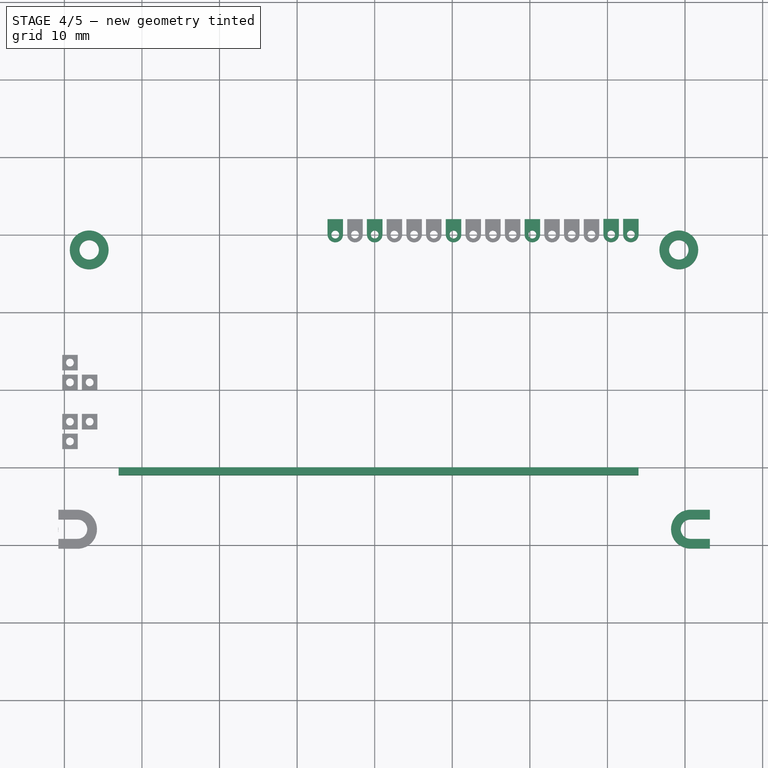
[diagram: stage 4 of 5 — top view after this stage's code; geometry added in this stage tinted green]
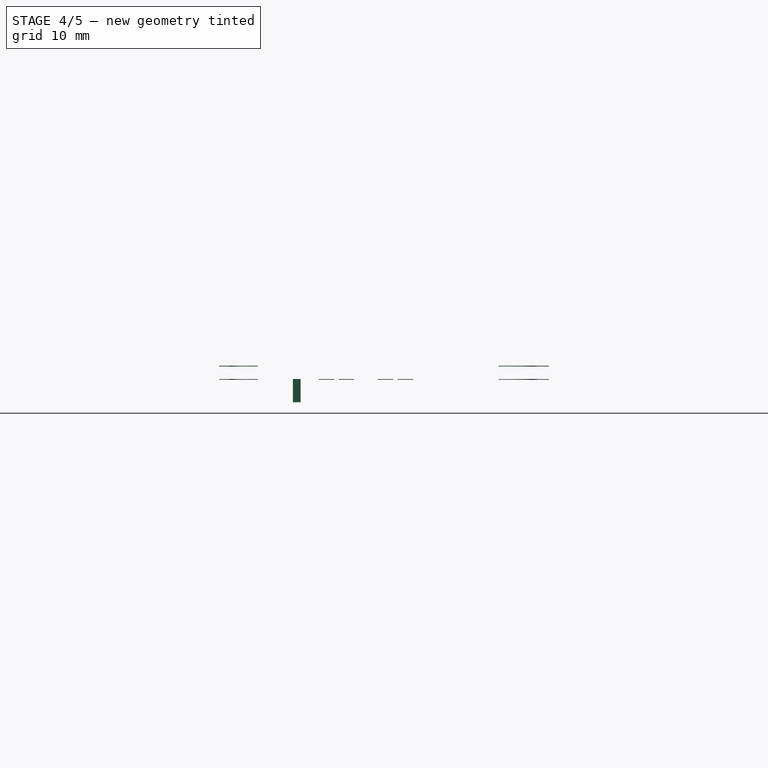
[diagram: stage 4 of 5 — right view after this stage's code; geometry added in this stage tinted green]
FEATURE [Part::Cylinder] Cylinder
  Angle = 360
  AttacherType = Attacher::AttachEngine3D
  Height = 0.1
  Placement = pos=(0,0,1.6) rot=(0,0,1;0rad)
  Radius = 1
FEATURE [Part::Cylinder] Cylinder001
  Angle = 360
  AttacherType = Attacher::AttachEngine3D
  Height = 0.1
  Placement = pos=(0,0,1.6) rot=(0,0,1;0rad)
  Radius = 0.5
FEATURE [Part::Cut] Cut005
  Base = -> Cylinder
  Tool = -> Cylinder001
FEATURE [Part::Box] Box007  label="Kub004"
  AttacherType = Attacher::AttachEngine3D
  Height = 0.1
  Length = 2
  Placement = pos=(-1,0,1.6) rot=(0,0,1;0rad)
  Width = 2
FEATURE [Part::Cylinder] Cylinder002
  Angle = 360
  AttacherType = Attacher::AttachEngine3D
  Height = 0.1
  Placement = pos=(0,0,1.6) rot=(0,0,1;0rad)
  Radius = 0.5
FEATURE [Part::Cut] Cut006
  Base = -> Box007
  Tool = -> Cylinder002
FEATURE [Part::Cylinder] Cylinder012
  Angle = 360
  AttacherType = Attacher::AttachEngine3D
  Height = 0.1
  Placement = pos=(0,0,1.6) rot=(0,0,1;0rad)
  Radius = 1
FEATURE [Part::Cylinder] Cylinder013
  Angle = 360
  AttacherType = Attacher::AttachEngine3D
  Height = 0.1
  Placement = pos=(0,0,1.6) rot=(0,0,1;0rad)
  Radius = 0.5
FEATURE [Part::Cut] Cut013
  Base = -> Cylinder012
  Tool = -> Cylinder013
FEATURE [Part::Box] Box011  label="Kub008"
  AttacherType = Attacher::AttachEngine3D
  Height = 0.1
  Length = 2
  Placement = pos=(-1,0,1.6) rot=(0,0,1;0rad)
  Width = 2
FEATURE [Part::Cylinder] Cylinder014
  Angle = 360
  AttacherType = Attacher::AttachEngine3D
  Height = 0.1
  Placement = pos=(0,0,1.6) rot=(0,0,1;0rad)
  Radius = 0.5
FEATURE [Part::Cut] Cut014
  Base = -> Box011
  Tool = -> Cylinder014
FEATURE [Part::Cylinder] Cylinder024
  Angle = 360
  AttacherType = Attacher::AttachEngine3D
  Height = 0.1
  Placement = pos=(0,0,1.6) rot=(0,0,1;0rad)
  Radius = 1
FEATURE [Part::Cylinder] Cylinder025
  Angle = 360
  AttacherType = Attacher::AttachEngine3D
  Height = 0.1
  Placement = pos=(0,0,1.6) rot=(0,0,1;0rad)
  Radius = 0.5
FEATURE [Part::Cut] Cut021
  Base = -> Cylinder024
  Tool = -> Cylinder025
FEATURE [Part::Box] Box015  label="Kub012"
  AttacherType = Attacher::AttachEngine3D
  Height = 0.1
  Length = 2
  Placement = pos=(-1,0,1.6) rot=(0,0,1;0rad)
  Width = 2
FEATURE [Part::Cut] Cut022
  Base = -> Box015
  Tool = -> Cylinder026
FEATURE [Part::Cylinder] Cylinder039
  Angle = 360
  AttacherType = Attacher::AttachEngine3D
  Height = 0.1
  Placement = pos=(0,0,1.6) rot=(0,0,1;0rad)
  Radius = 1
FEATURE [Part::Cylinder] Cylinder040
  Angle = 360
  AttacherType = Attacher::AttachEngine3D
  Height = 0.1
  Placement = pos=(0,0,1.6) rot=(0,0,1;0rad)
  Radius = 0.5
FEATURE [Part::Cut] Cut031
  Base = -> Cylinder039
  Tool = -> Cylinder040
FEATURE [Part::Box] Box020  label="Kub017"
  AttacherType = Attacher::AttachEngine3D
  Height = 0.1
  Length = 2
  Placement = pos=(-1,0,1.6) rot=(0,0,1;0rad)
  Width = 2
FEATURE [Part::Cylinder] Cylinder041
  Angle = 360
  AttacherType = Attacher::AttachEngine3D
  Height = 0.1
  Placement = pos=(0,0,1.6) rot=(0,0,1;0rad)
  Radius = 0.5
FEATURE [Part::Cut] Cut032
  Base = -> Box020
  Tool = -> Cylinder041
FEATURE [Part::Box] Box028  label="Glider 002"
  AttacherType = Attacher::AttachEngine3D
  Height = 3
  Length = 67
  Placement = pos=(-33,-31,0) rot=(0,0,1;0rad)
  Width = 1
FEATURE [Part::Cylinder] Cylinder048
  Angle = 360
  AttacherType = Attacher::AttachEngine3D
  Height = 0.1
  Placement = pos=(0,0,4.6) rot=(0,0,1;0rad)
  Radius = 2.5
FEATURE [Part::Cylinder] Cylinder049
  Angle = 360
  AttacherType = Attacher::AttachEngine3D
  Height = 0.1
  Placement = pos=(0,0,4.6) rot=(0,0,1;0rad)
  Radius = 1.25
FEATURE [Part::Cut] Cut039  label="Corner Copper 001"
  Base = -> Cylinder048
  Placement = pos=(-36.8,-2,0) rot=(0,0,1;0rad)
  Tool = -> Cylinder049
FEATURE [Part::Cylinder] Cylinder050
  Angle = 360
  AttacherType = Attacher::AttachEngine3D
  Height = 0.1
  Placement = pos=(0,0,4.6) rot=(0,0,1;0rad)
  Radius = 2.5
FEATURE [Part::Cylinder] Cylinder051
  Angle = 360
  AttacherType = Attacher::AttachEngine3D
  Height = 0.1
  Placement = pos=(0,0,4.6) rot=(0,0,1;0rad)
  Radius = 1.25
FEATURE [Part::Cut] Cut040  label="Corner Copper 002"
  Base = -> Cylinder050
  Placement = pos=(39.2,-2,0) rot=(0,0,1;0rad)
  Tool = -> Cylinder051
FEATURE [Part::Cylinder] Cylinder054
  Angle = 360
  AttacherType = Attacher::AttachEngine3D
  Height = 0.1
  Placement = pos=(0,0,4.6) rot=(0,0,1;0rad)
  Radius = 2.5
FEATURE [Part::Cylinder] Cylinder055
  Angle = 360
  AttacherType = Attacher::AttachEngine3D
  Height = 0.1
  Placement = pos=(0,0,4.6) rot=(0,0,1;0rad)
  Radius = 1.25
FEATURE [Part::Cut] Cut042  label="Corner Copper 004"
  Base = -> Cylinder054
  Placement = pos=(40.7,-38,0) rot=(0,0,1;0rad)
  Tool = -> Cylinder055
FEATURE [Part::Box] Box030  label="Kub025"
  AttacherType = Attacher::AttachEngine3D
  Height = 0.1
  Length = 2.5
  Placement = pos=(40.7,-40.5,4.6) rot=(0,0,1;0rad)
  Width = 5
FEATURE [Part::Cut] Cut043
  Base = -> Cut042
  Tool = -> Box030
FEATURE [Part::Box] Box031  label="Kub026"
  AttacherType = Attacher::AttachEngine3D
  Height = 0.1
  Length = 2.5
  Placement = pos=(40.7,-40.5,4.6) rot=(0,0,1;0rad)
  Width = 1.25
FEATURE [Part::Box] Box032  label="Kub027"
  AttacherType = Attacher::AttachEngine3D
  Height = 0.1
  Length = 2.5
  Placement = pos=(40.7,-36.75,4.6) rot=(0,0,1;0rad)
  Width = 1.25
FEATURE [Part::MultiFuse] Fusion014
  Shapes = -> [Cut043,Box032,Box031]
FEATURE [Part::MultiFuse] Fusion016  label="Pin 015"
  Placement = pos=(30.48,0,3) rot=(0,0,1;0rad)
  Shapes = -> [Cut049,Cut050]
FEATURE [Part::MultiFuse] Fusion017  label="Pin 016"
  Placement = pos=(33.02,0,3) rot=(0,0,1;0rad)
  Shapes = -> [Cut051,Cut052]
FEATURE [Part::MultiFuse] Fusion018  label="Pin 017"
  Placement = pos=(0,0,1.3) rot=(0,0,1;0rad)
  Shapes = -> [Cut005,Cut006]
FEATURE [Part::MultiFuse] Fusion019  label="Pin 018"
  Placement = pos=(-5.08,0,1.3) rot=(0,0,1;0rad)
  Shapes = -> [Cut031,Cut032]
FEATURE [Part::MultiFuse] Fusion020  label="Pin 019"
  Placement = pos=(10.16,0,1.3) rot=(0,0,1;0rad)
  Shapes = -> [Cut013,Cut014]
FEATURE [Part::MultiFuse] Fusion021  label="Pin 020"
  Placement = pos=(20.32,0,1.3) rot=(0,0,1;0rad)
  Shapes = -> [Cut021,Cut022]
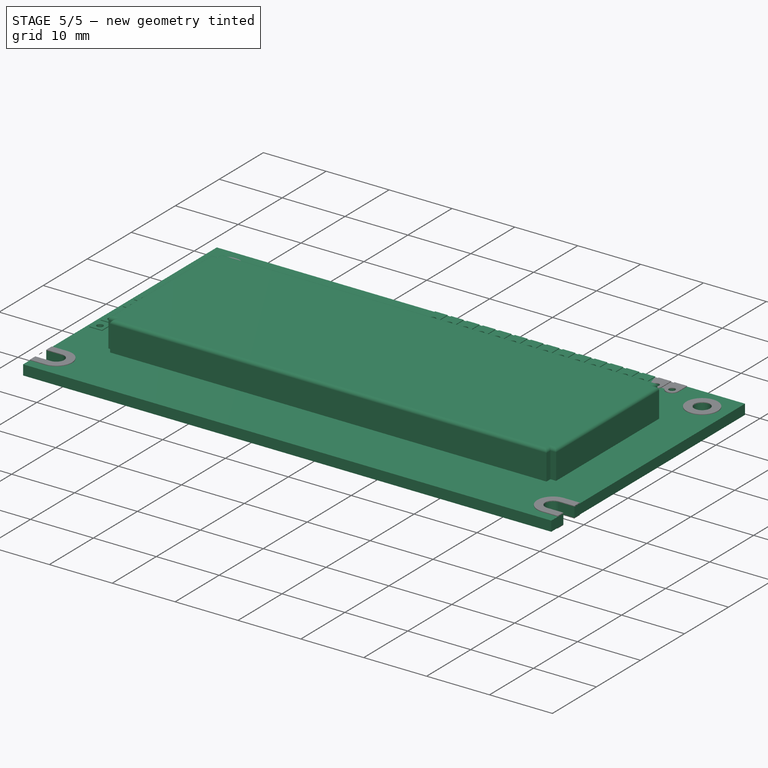
[diagram: stage 5 of 5 — iso view after this stage's code; geometry added in this stage tinted green]
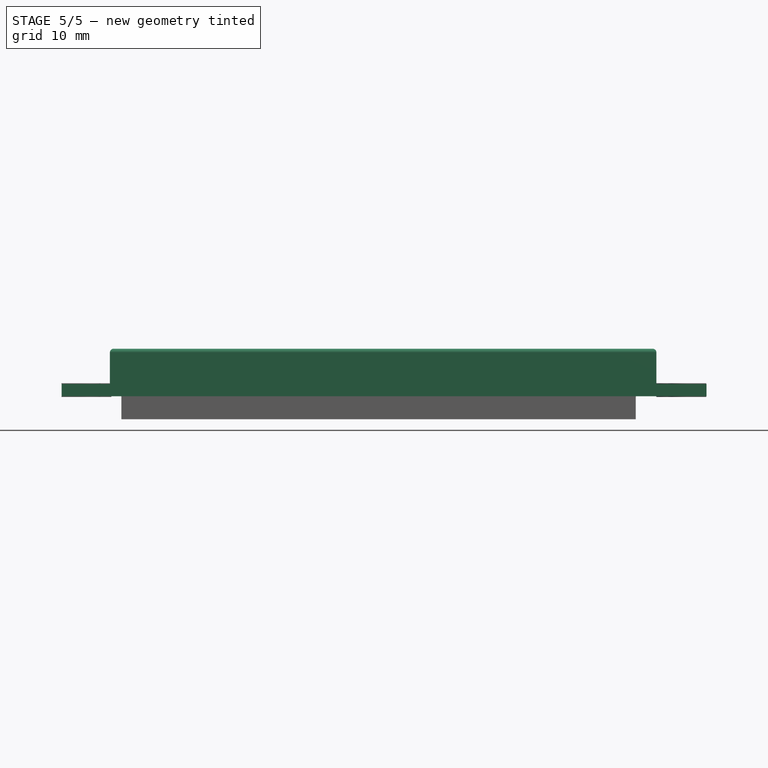
[diagram: stage 5 of 5 — front view after this stage's code; geometry added in this stage tinted green]
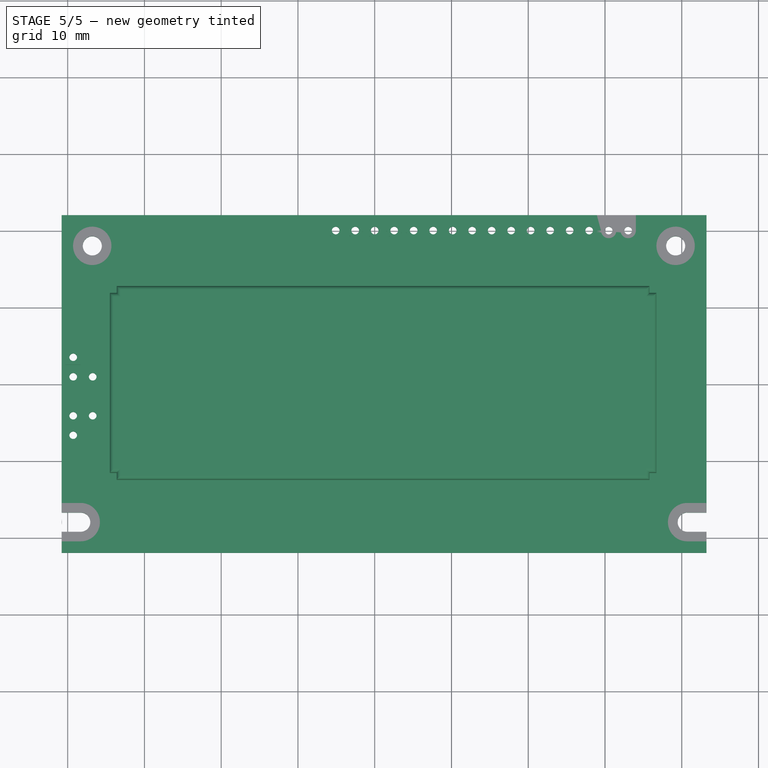
[diagram: stage 5 of 5 — top view after this stage's code; geometry added in this stage tinted green]
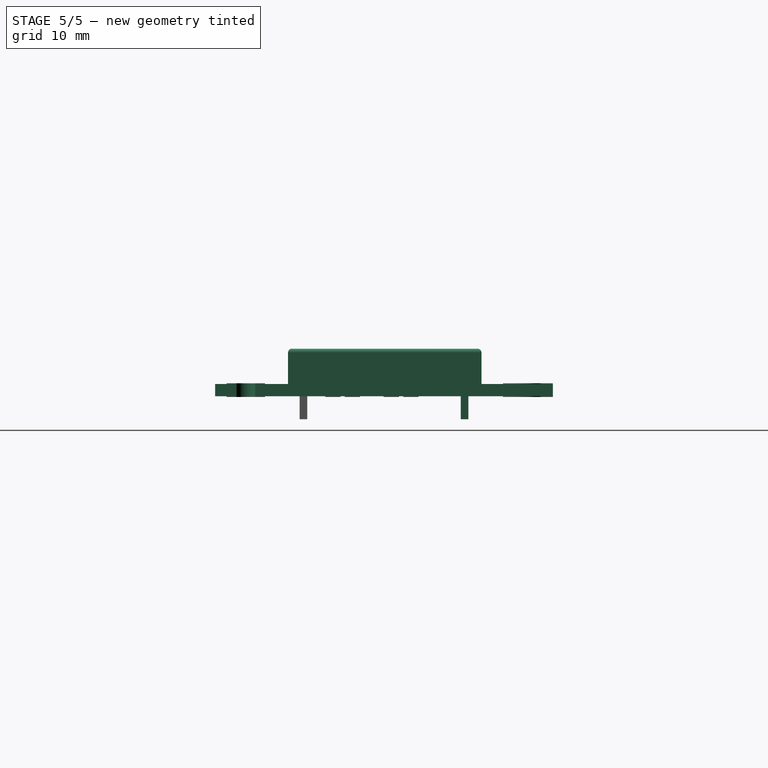
[diagram: stage 5 of 5 — right view after this stage's code; geometry added in this stage tinted green]
FEATURE [Sketcher::SketchObject] Sketch
  MapMode = 5
  Support = -> [XY_Plane]
  sketch-geometry (36):
    g0: LineSegment StartX=-40.78 StartY=2 StartZ=0 EndX=43.22 EndY=2 EndZ=0
    g1: LineSegment StartX=43.22 StartY=2 StartZ=0 EndX=43.22 EndY=-36.75 EndZ=0
    g2: LineSegment StartX=-40.78 StartY=-36.75 StartZ=0 EndX=-40.78 EndY=2 EndZ=0
    g3: Circle CenterX=-36.78 CenterY=-2 CenterZ=0 NormalX=0 NormalY=0 NormalZ=1 AngleXU=0 Radius=1.25
    g4: Circle CenterX=39.22 CenterY=-2 CenterZ=0 NormalX=0 NormalY=0 NormalZ=1 AngleXU=0 Radius=1.25
    g5: LineSegment StartX=43.22 StartY=-36.75 StartZ=0 EndX=40.72 EndY=-36.75 EndZ=0
    g6: ArcOfCircle CenterX=40.72 CenterY=-38 CenterZ=0 NormalX=0 NormalY=0 NormalZ=1 AngleXU=0 Radius=1.25 StartAngle=1.5708 EndAngle=4.71239
    g7: LineSegment StartX=40.72 StartY=-39.25 StartZ=0 EndX=43.22 EndY=-39.25 EndZ=0
    g8: LineSegment StartX=43.22 StartY=-39.25 StartZ=0 EndX=43.22 EndY=-42 EndZ=0
    g9: LineSegment StartX=-40.78 StartY=-36.75 StartZ=0 EndX=-38.28 EndY=-36.75 EndZ=0
    g10: ArcOfCircle CenterX=-38.28 CenterY=-38 CenterZ=0 NormalX=0 NormalY=0 NormalZ=1 AngleXU=0 Radius=1.25 StartAngle=4.71239 EndAngle=7.85398
    g11: LineSegment StartX=-38.28 StartY=-39.25 StartZ=0 EndX=-40.78 EndY=-39.25 EndZ=0
    g12: LineSegment StartX=-40.78 StartY=-39.25 StartZ=0 EndX=-40.78 EndY=-42 EndZ=0
    g13: LineSegment StartX=-40.78 StartY=-42 StartZ=0 EndX=43.22 EndY=-42 EndZ=0
    g14: Circle CenterX=7.62 CenterY=0 CenterZ=0 NormalX=0 NormalY=0 NormalZ=1 AngleXU=0 Radius=0.5
    g15: Circle CenterX=-2.54 CenterY=0 CenterZ=0 NormalX=0 NormalY=0 NormalZ=1 AngleXU=0 Radius=0.5
    g16: Circle CenterX=0 CenterY=0 CenterZ=0 NormalX=0 NormalY=0 NormalZ=1 AngleXU=0 Radius=0.5
    g17: Circle CenterX=2.54 CenterY=0 CenterZ=0 NormalX=0 NormalY=0 NormalZ=1 AngleXU=0 Radius=0.5
    g18: Circle CenterX=5.08 CenterY=0 CenterZ=0 NormalX=0 NormalY=0 NormalZ=1 AngleXU=0 Radius=0.5
    g19: Circle CenterX=-5.08 CenterY=0 CenterZ=0 NormalX=0 NormalY=0 NormalZ=1 AngleXU=0 Radius=0.5
    g20: Circle CenterX=10.16 CenterY=0 CenterZ=0 NormalX=0 NormalY=0 NormalZ=1 AngleXU=0 Radius=0.5
    g21: Circle CenterX=12.7 CenterY=0 CenterZ=0 NormalX=0 NormalY=0 NormalZ=1 AngleXU=0 Radius=0.5
    g22: Circle CenterX=15.24 CenterY=0 CenterZ=0 NormalX=0 NormalY=0 NormalZ=1 AngleXU=0 Radius=0.5
    g23: Circle CenterX=17.78 CenterY=0 CenterZ=0 NormalX=0 NormalY=0 NormalZ=1 AngleXU=0 Radius=0.5
    g24: Circle CenterX=20.32 CenterY=0 CenterZ=0 NormalX=0 NormalY=0 NormalZ=1 AngleXU=0 Radius=0.5
    g25: Circle CenterX=22.86 CenterY=0 CenterZ=0 NormalX=0 NormalY=0 NormalZ=1 AngleXU=0 Radius=0.5
    g26: Circle CenterX=25.4 CenterY=0 CenterZ=0 NormalX=0 NormalY=0 NormalZ=1 AngleXU=0 Radius=0.5
    g27: Circle CenterX=27.94 CenterY=0 CenterZ=0 NormalX=0 NormalY=0 NormalZ=1 AngleXU=0 Radius=0.5
    g28: Circle CenterX=-39.28 CenterY=-19.06 CenterZ=0 NormalX=0 NormalY=0 NormalZ=1 AngleXU=0 Radius=0.5
    g29: Circle CenterX=-36.74 CenterY=-19.06 CenterZ=0 NormalX=0 NormalY=0 NormalZ=1 AngleXU=0 Radius=0.5
    g30: Circle CenterX=-39.28 CenterY=-16.52 CenterZ=0 NormalX=0 NormalY=0 NormalZ=1 AngleXU=0 Radius=0.5
    g31: Circle CenterX=-36.74 CenterY=-24.14 CenterZ=0 NormalX=0 NormalY=0 NormalZ=1 AngleXU=0 Radius=0.5
    g32: Circle CenterX=-39.28 CenterY=-24.14 CenterZ=0 NormalX=0 NormalY=0 NormalZ=1 AngleXU=0 Radius=0.5
    g33: Circle CenterX=-39.28 CenterY=-26.68 CenterZ=0 NormalX=0 NormalY=0 NormalZ=1 AngleXU=0 Radius=0.5
    g34: Circle CenterX=30.48 CenterY=0 CenterZ=0 NormalX=0 NormalY=0 NormalZ=1 AngleXU=0 Radius=0.5
    g35: Circle CenterX=33.02 CenterY=0 CenterZ=0 NormalX=0 NormalY=0 NormalZ=1 AngleXU=0 Radius=0.5
  constraints (94):
    c: Coincident(g0,g1)
    c: Coincident(g2,g0)
    c: Horizontal(g0)
    c: Vertical(g1)
    c: Vertical(g2)
    c: DistanceX(g0,g0) = 84
    c: DistanceY(g2,g0) = 38.75
    c: DistanceX(g-1,g0) = 43.22
    c: DistanceY(g-1,g0) = 2
    c: Radius(g3) = 1.25
    c: DistanceY(g3,g0) = 4
    c: Radius(g4) = 1.25
    c: DistanceY(g4,g0) = 4
    c: DistanceX(g4,g0) = 4
    c: DistanceY(g1,g0) = 38.75
    c: Coincident(g5,g1)
    c: Horizontal(g5)
    c: DistanceX(g5,g1) = 2.5
    c: Coincident(g6,g5)
    c: Radius(g6) = 1.25
    c: DistanceX(g6,g5) = 0
    c: DistanceY(g6,g5) = 2.5
    c: Coincident(g7,g6)
    c: Horizontal(g7)
    c: DistanceX(g6,g7) = 2.5
    c: Coincident(g8,g7)
    c: Vertical(g8)
    c: DistanceY(g8,g7) = 2.75
    c: Coincident(g9,g2)
    c: Horizontal(g9)
    c: DistanceX(g2,g9) = 2.5
    c: Coincident(g10,g9)
    c: Radius(g10) = 1.25
    c: DistanceX(g9,g10) = 0
    c: DistanceY(g10,g9) = 2.5
    c: Coincident(g11,g10)
    c: Horizontal(g11)
    c: DistanceX(g11,g10) = 2.5
    c: Coincident(g12,g11)
    c: Vertical(g12)
    c: DistanceY(g12,g11) = 2.75
    c: Coincident(g13,g12)
    c: Coincident(g13,g8)
    c: Radius(g14) = 0.5
    c: Equal(g14, g15-g27) x13
    c: DistanceX(g19,g15) = 2.54
    c: DistanceX(g15,g16) = 2.54
    c: DistanceX(g16,g17) = 2.54
    c: DistanceX(g17,g18) = 2.54
    c: DistanceX(g18,g14) = 2.54
    c: DistanceX(g14,g20) = 2.54
    c: DistanceX(g20,g21) = 2.54
    c: DistanceX(g21,g22) = 2.54
    c: DistanceX(g22,g23) = 2.54
    c: DistanceX(g23,g24) = 2.54
    c: DistanceX(g24,g25) = 2.54
    c: DistanceX(g25,g26) = 2.54
    c: DistanceX(g26,g27) = 2.54
    c: DistanceY(g15,g19) = 0
    c: DistanceY(g15,g16) = 0
    c: DistanceY(g17,g16) = 0
    c: DistanceY(g18,g17) = 0
    c: DistanceY(g14,g18) = 0
    c: DistanceY(g20,g14) = 0
    c: DistanceY(g21,g20) = 0
    c: DistanceY(g21,g22) = 0
    c: DistanceY(g23,g22) = 0
    c: DistanceY(g23,g24) = 0
    c: DistanceY(g24,g25) = 0
    c: DistanceY(g25,g26) = 0
    c: DistanceY(g27,g26) = 0
    c: DistanceX(g16,g-1) = 0
    c: DistanceY(g16,g-1) = 0
    c: Radius(g28) = 0.5
    c: Equal(g28, g29-g33) x5
    c: DistanceY(g12,g33) = 15.32
    c: DistanceX(g12,g33) = 1.5
    c: DistanceX(g33,g32) = 0
    c: DistanceY(g33,g32) = 2.54
    c: DistanceY(g32,g31) = 0
    c: DistanceX(g32,g31) = 2.54
    c: DistanceX(g28,g33) = 0
    c: DistanceX(g28,g29) = 2.54
    c: DistanceY(g28,g29) = 0
    c: DistanceX(g28,g30) = 0
    c: DistanceY(g28,g30) = 2.54
    c: DistanceX(g3,g4) = 76
    c: Radius(g34) = 0.5
    c: Equal(g34,g35)
    c: DistanceX(g34,g35) = 2.54
    c: DistanceY(g35,g34) = 0
    c: DistanceX(g27,g34) = 2.54
    c: DistanceY(g34,g27) = 0
    c: DistanceY(g33,g30) = 10.16
FEATURE [PartDesign::Pad] Pad
  Length = 1.6
  Length2 = 100
  Profile = -> Sketch
  Type = 0
FEATURE [PartDesign::Body] Body
  Group = -> [Sketch,Pad]
  Origin = -> BodyOrigin
  Placement = pos=(0,0,3) rot=(0,0,1;0rad)
  Tip = -> Pad
FEATURE [Part::Box] Box  label="LCD frame"
  AttacherType = Attacher::AttachEngine3D
  Height = 4.6
  Length = 71.2
  Placement = pos=(-34.5,-32.5,1.6) rot=(0,0,1;0rad)
  Width = 25.2
FEATURE [Part::Box] Box001  label="LCD frame cutout"
  AttacherType = Attacher::AttachEngine3D
  Height = 2
  Length = 66
  Placement = pos=(-32.25,-28.25,8.6) rot=(0,0,1;0rad)
  Width = 16
FEATURE [Part::Fillet] Fillet
  Base = -> Box001
  Edges = 1 edges r=1: [Edge3]
FEATURE [Part::Fillet] Fillet001
  Base = -> Fillet
  Edges = 1 edges r=1: [Edge3]
FEATURE [Part::Fillet] Fillet002
  Base = -> Fillet001
  Edges = 1 edges r=1: [Edge18]
FEATURE [Part::Fillet] Fillet003  label="LCD frame cutout001"
  Base = -> Fillet002
  Edges = 1 edges r=1: [Edge15]
  Placement = pos=(0,0.5,-4.4) rot=(0,0,1;0rad)
FEATURE [Part::Box] Box002  label="Kub"
  AttacherType = Attacher::AttachEngine3D
  Height = 4.6
  Length = 1
  Placement = pos=(-34.6,-8.2,1.6) rot=(0,0,1;0rad)
  Width = 1
FEATURE [Part::Box] Box003  label="Kub001"
  AttacherType = Attacher::AttachEngine3D
  Height = 4.6
  Length = 1
  Placement = pos=(-34.6,-32.6,1.6) rot=(0,0,1;0rad)
  Width = 1
FEATURE [Part::Box] Box004  label="Kub002"
  AttacherType = Attacher::AttachEngine3D
  Height = 4.6
  Length = 1
  Placement = pos=(35.8,-32.6,1.6) rot=(0,0,1;0rad)
  Width = 1
FEATURE [Part::Box] Box005  label="Kub003"
  AttacherType = Attacher::AttachEngine3D
  Height = 4.6
  Length = 1
  Placement = pos=(35.8,-8.2,1.6) rot=(0,0,1;0rad)
  Width = 1
FEATURE [Part::Cut] Cut
  Base = -> Box
  Tool = -> Box002
FEATURE [Part::Cut] Cut001
  Base = -> Cut
  Tool = -> Box003
FEATURE [Part::Cut] Cut002
  Base = -> Cut001
  Tool = -> Box005
FEATURE [Part::Cut] Cut003
  Base = -> Cut002
  Tool = -> Box004
FEATURE [Part::Cut] Cut004
  Base = -> Cut003
  Tool = -> Fillet003
FEATURE [Part::Fillet] Fillet004
  Base = -> Cut004
  Edges = 12 edges r=0.5: [Edge1,Edge5,Edge6,Edge7,Edge8,Edge9,Edge10,Edge11,Edge12,Edge13,Edge14,Edge15]
  Placement = pos=(0,0,3) rot=(0,0,1;0rad)
FEATURE [Part::Box] Box006  label="LCD frame cutout002"
  AttacherType = Attacher::AttachEngine3D
  Height = 2
  Length = 66
  Placement = pos=(-32.25,-28.25,8.6) rot=(0,0,1;0rad)
  Width = 16
FEATURE [Part::Fillet] Fillet005
  Base = -> Box006
  Edges = 1 edges r=1: [Edge3]
FEATURE [Part::Fillet] Fillet006
  Base = -> Fillet005
  Edges = 1 edges r=1: [Edge3]
FEATURE [Part::Fillet] Fillet007
  Base = -> Fillet006
  Edges = 1 edges r=1: [Edge18]
FEATURE [Part::Fillet] Fillet008  label="LCD frame cutout003"
  Base = -> Fillet007
  Edges = 1 edges r=1: [Edge15]
  Placement = pos=(0,0.5,-1.4) rot=(0,0,1;0rad)
FEATURE [Part::MultiFuse] Fusion  label="Pin 001"
  Placement = pos=(0,0,3) rot=(0,0,1;0rad)
  Shapes = -> [Cut005,Cut006]
FEATURE [Part::MultiFuse] Fusion001  label="Pin 002"
  Placement = pos=(2.54,0,3) rot=(0,0,1;0rad)
  Shapes = -> [Cut007,Cut008]
FEATURE [Part::MultiFuse] Fusion002  label="Pin 003"
  Placement = pos=(5.08,0,3) rot=(0,0,1;0rad)
  Shapes = -> [Cut009,Cut010]
FEATURE [Part::MultiFuse] Fusion003  label="Pin 004"
  Placement = pos=(7.62,0,3) rot=(0,0,1;0rad)
  Shapes = -> [Cut011,Cut012]
FEATURE [Part::MultiFuse] Fusion004  label="Pin 005"
  Placement = pos=(10.16,0,3) rot=(0,0,1;0rad)
  Shapes = -> [Cut013,Cut014]
FEATURE [Part::MultiFuse] Fusion005  label="Pin 006"
  Placement = pos=(12.7,0,3) rot=(0,0,1;0rad)
  Shapes = -> [Cut015,Cut016]
FEATURE [Part::MultiFuse] Fusion006  label="Pin 007"
  Placement = pos=(15.24,0,3) rot=(0,0,1;0rad)
  Shapes = -> [Cut017,Cut018]
FEATURE [Part::MultiFuse] Fusion007  label="Pin 008"
  Placement = pos=(17.78,0,3) rot=(0,0,1;0rad)
  Shapes = -> [Cut019,Cut020]
FEATURE [Part::MultiFuse] Fusion008  label="Pin 009"
  Placement = pos=(20.32,0,3) rot=(0,0,1;0rad)
  Shapes = -> [Cut021,Cut022]
FEATURE [Part::MultiFuse] Fusion009  label="Pin 010"
  Placement = pos=(22.86,0,3) rot=(0,0,1;0rad)
  Shapes = -> [Cut023,Cut024]
FEATURE [Part::MultiFuse] Fusion010  label="Pin 011"
  Placement = pos=(25.4,0,3) rot=(0,0,1;0rad)
  Shapes = -> [Cut025,Cut026]
FEATURE [Part::MultiFuse] Fusion011  label="Pin 012"
  Placement = pos=(27.94,0,3) rot=(0,0,1;0rad)
  Shapes = -> [Cut027,Cut028]
FEATURE [Part::MultiFuse] Fusion012  label="Pin 013"
  Placement = pos=(-2.54,0,3) rot=(0,0,1;0rad)
  Shapes = -> [Cut029,Cut030]
FEATURE [Part::MultiFuse] Fusion013  label="Pin 014"
  Placement = pos=(-5.08,0,3) rot=(0,0,1;0rad)
  Shapes = -> [Cut031,Cut032]
FEATURE [Part::Cut] Cut033  label="SquarePin 001"
  Base = -> Box021
  Placement = pos=(-36.74,-19.05,3) rot=(0,0,1;0rad)
  Tool = -> Cylinder042
FEATURE [Part::Cut] Cut034  label="SquarePin 002"
  Base = -> Box022
  Placement = pos=(-39.28,-19.05,3) rot=(0,0,1;0rad)
  Tool = -> Cylinder043
FEATURE [Part::Cut] Cut035  label="SquarePin 003"
  Base = -> Box023
  Placement = pos=(-39.28,-16.5,3) rot=(0,0,1;0rad)
  Tool = -> Cylinder044
FEATURE [Part::Cut] Cut036  label="SquarePin 004"
  Base = -> Box024
  Placement = pos=(-39.28,-24.12,3) rot=(0,0,1;0rad)
  Tool = -> Cylinder045
FEATURE [Part::Cut] Cut037  label="SquarePin 005"
  Base = -> Box025
  Placement = pos=(-39.28,-26.66,3) rot=(0,0,1;0rad)
  Tool = -> Cylinder046
FEATURE [Part::Cut] Cut038  label="SquarePin 006"
  Base = -> Box026
  Placement = pos=(-36.74,-24.12,3) rot=(0,0,1;0rad)
  Tool = -> Cylinder047
FEATURE [Part::Box] Box027  label="Glider 001"
  AttacherType = Attacher::AttachEngine3D
  Height = 3
  Length = 67
  Placement = pos=(-33,-10,0) rot=(0,0,1;0rad)
  Width = 1
FEATURE [Part::MultiFuse] Fusion015_mp_cp  label="Fusion015_fd"
  Shapes = -> [Fusion015,Cut038,Cut039,Cut033,Cut035,Cut036,Cut037,Cut034,Cut059,Body,Fusion031,Fusion032,Fusion030,Fusion027,Fusion028,Fusion033,Fusion029,Fusion022,Fusion026,Fusion020,Fusion025,Fusion024,Fusion019,Fusion021,Fusion023,Fusion018,Fusion017,Fillet008,Fillet004,Fusion013,Fusion014,Fusion016,Fusion004,Fusion008,Fusion001,Fusion006,Fusion010,Fusion012,Fusion,Fusion009,Fusion007,Fusion005,Fusion002,+14 more]
FEATURE [Part::Feature] Shape  label="Fusion015_fd_sp"
  shape: bbox 84.02 x 44 x 9.2 mm, 550 faces, 3 solids (baked)
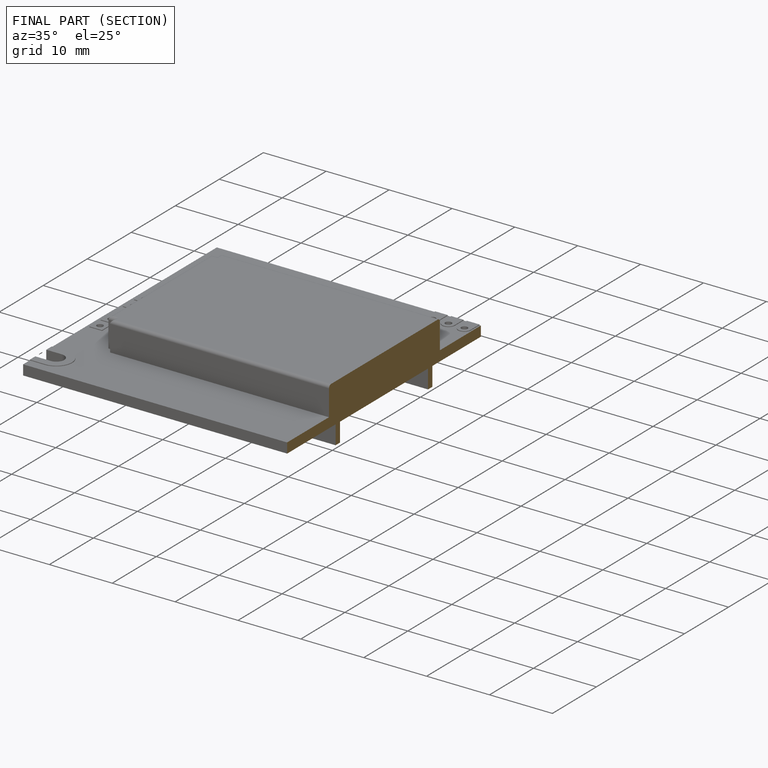
[diagram: finished part — half-section view (interior)]
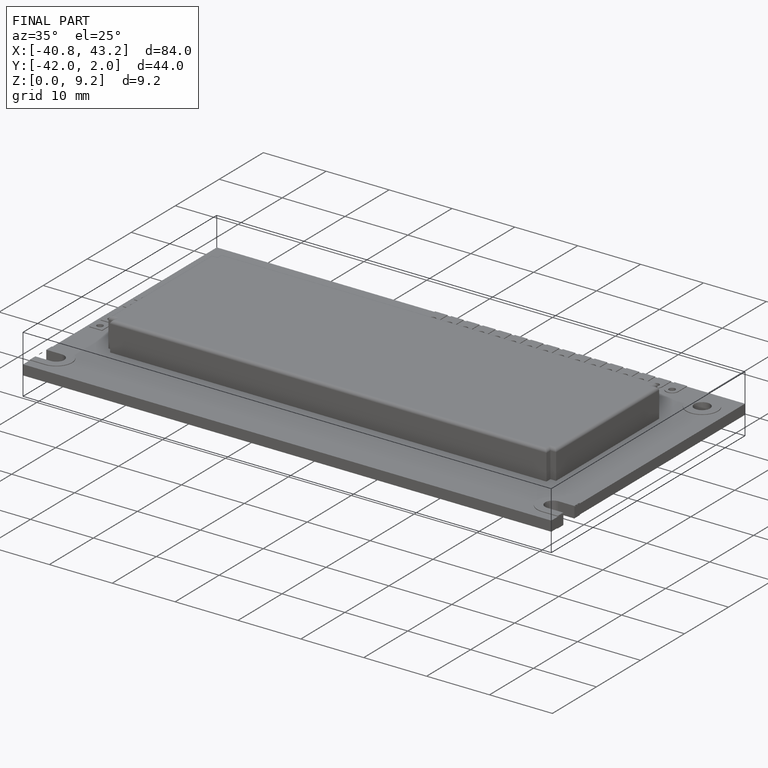
[diagram: finished part — iso view with bounding-box wireframe]
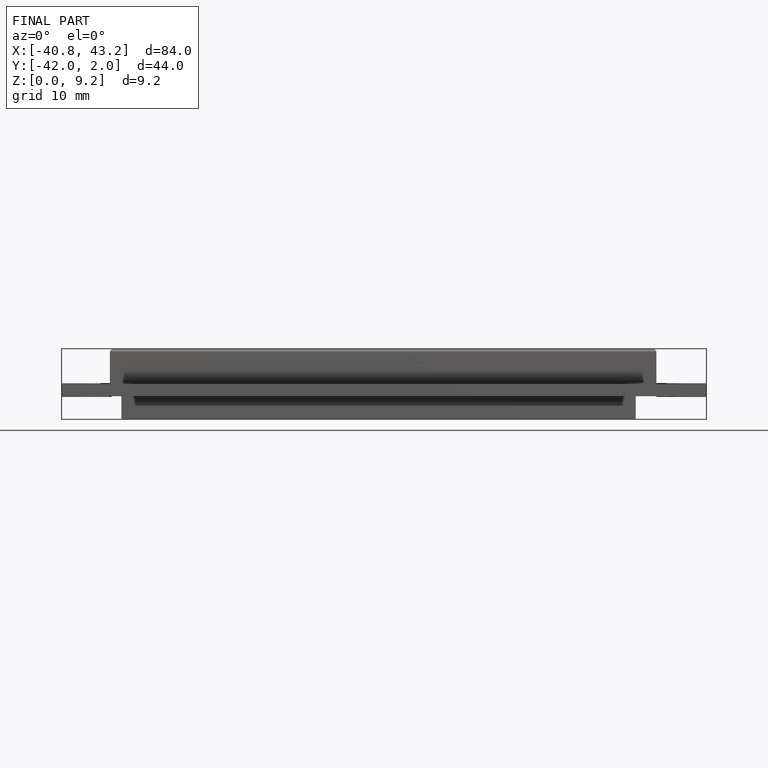
[diagram: finished part — front view with bounding-box wireframe]
